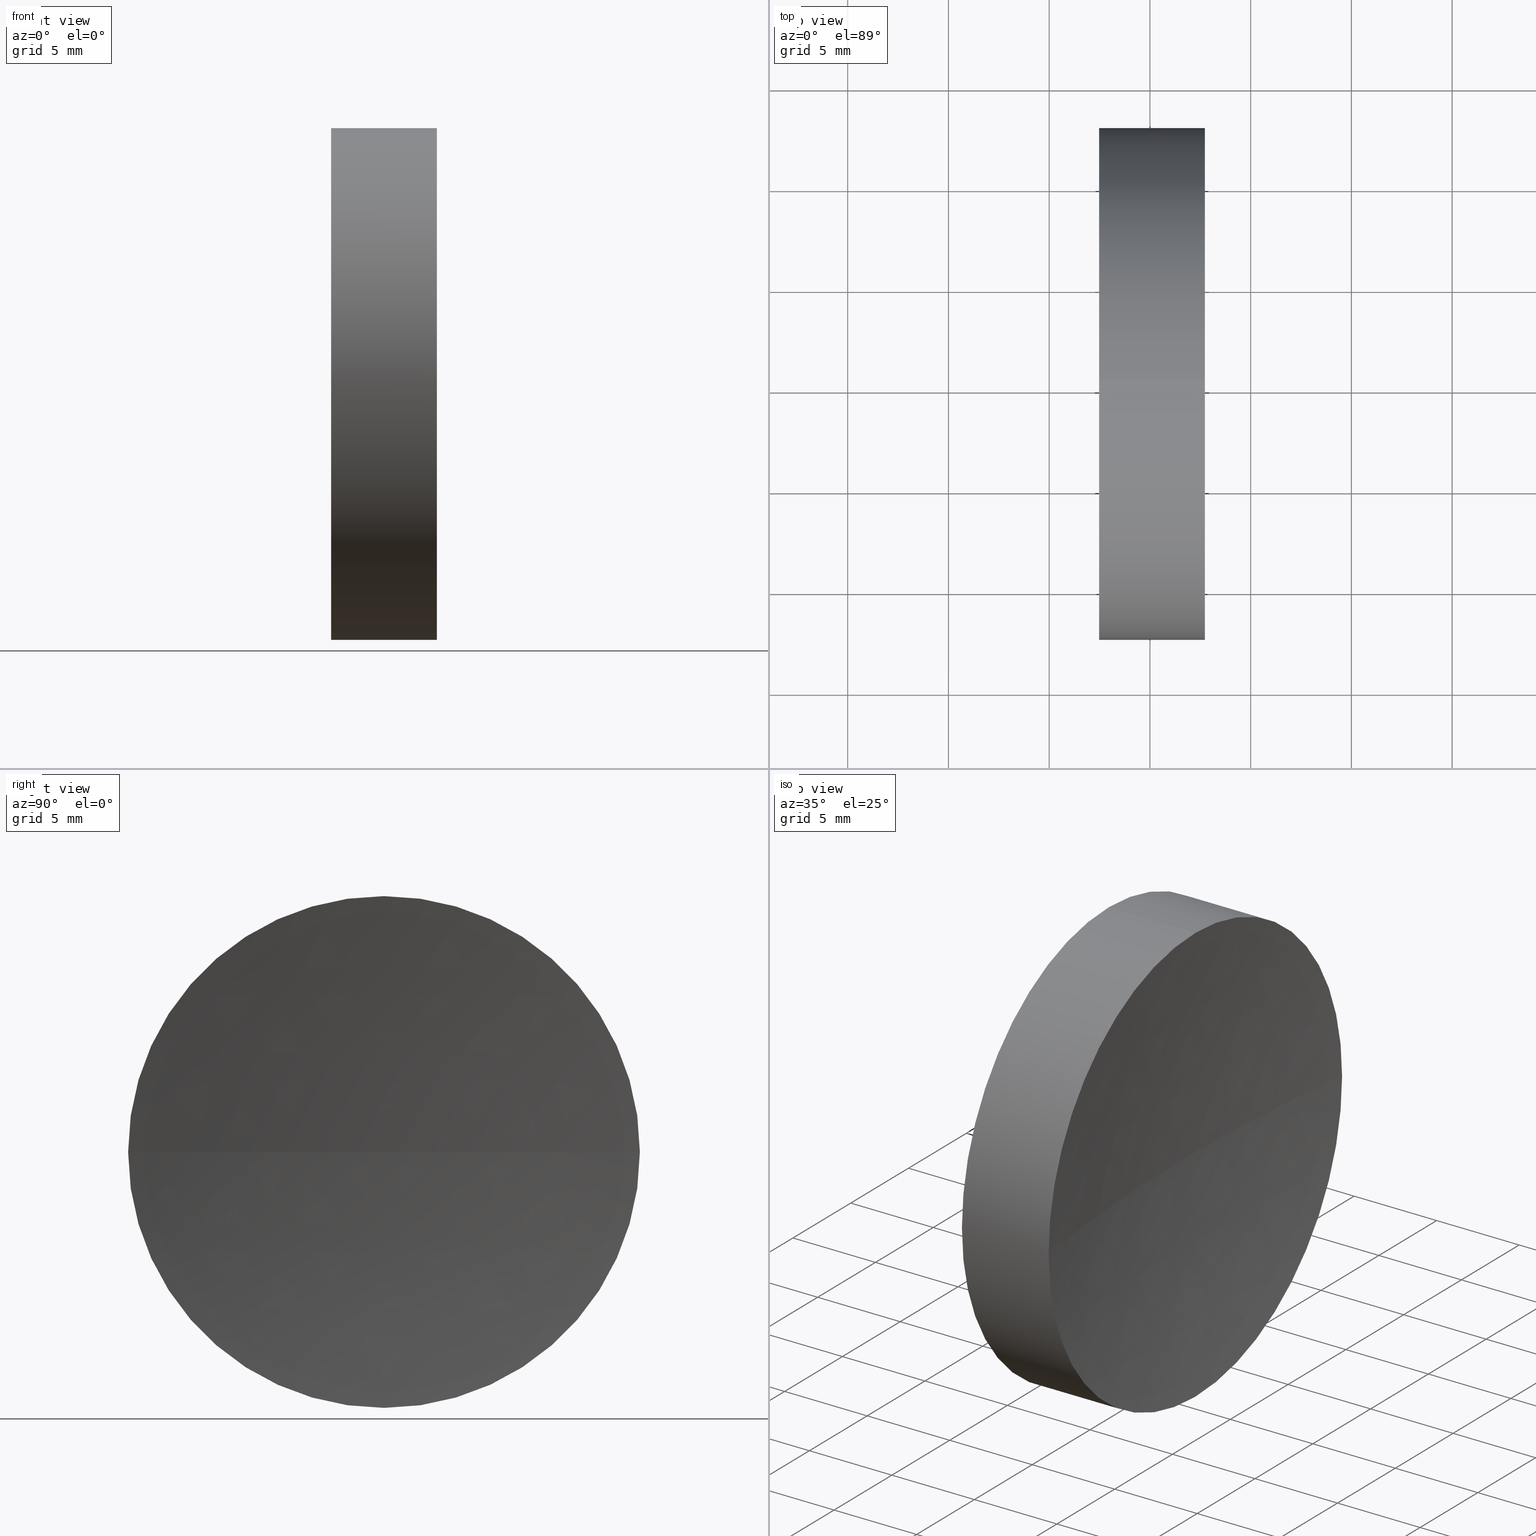
[diagram: canonical four-view strip — front | top / right | iso, engineering-drawing reading convention]
A machine part, canonical four-view strip (front | top / right | iso — engineering-drawing reading convention). The complete STEP part file that produces these views, byte-faithful:
ISO-10303-21;
HEADER;
FILE_DESCRIPTION (( 'STEP AP214' ),
    '1' );
FILE_NAME ('130060.STEP',
    '2019-07-02T06:16:13',
    ( '' ),
    ( '' ),
    'SwSTEP 2.0',
    'SolidWorks 2016',
    '' );
FILE_SCHEMA (( 'AUTOMOTIVE_DESIGN' ));
ENDSEC;

DATA;
#1 = ORIENTED_EDGE ( 'NONE', *, *, #63, .T. ) ;
#2 = PRODUCT_DEFINITION ( 'δ֪', '', #175, #84 ) ;
#3 = DIRECTION ( 'NONE',  ( 0.0000000000000000000, 0.0000000000000000000, -1.000000000000000000 ) ) ;
#4 = CARTESIAN_POINT ( 'NONE',  ( 117.4776727839183900, 77.92260287298734100, 0.0000000000000000000 ) ) ;
#5 = VECTOR ( 'NONE', #171, 1000.000000000000000 ) ;
#6 = DIRECTION ( 'NONE',  ( 0.0000000000000000000, 0.0000000000000000000, 1.000000000000000000 ) ) ;
#7 = ORIENTED_EDGE ( 'NONE', *, *, #120, .T. ) ;
#8 = CARTESIAN_POINT ( 'NONE',  ( 117.4776727839183900, 65.22260287298739500, -12.69999999999997400 ) ) ;
#9 = EDGE_CURVE ( 'NONE', #164, #29, #129, .T. ) ;
#10 = DIRECTION ( 'NONE',  ( 0.0000000000000000000, 1.000000000000000000, 1.224646799147353000E-016 ) ) ;
#11 = EDGE_LOOP ( 'NONE', ( #81, #210, #183, #21 ) ) ;
#12 =( LENGTH_UNIT ( ) NAMED_UNIT ( * ) SI_UNIT ( .MILLI., .METRE. ) );
#13 = SPHERICAL_SURFACE ( 'NONE', #94, 92.59999999999999400 ) ;
#14 = VERTEX_POINT ( 'NONE', #35 ) ;
#15 = AXIS2_PLACEMENT_3D ( 'NONE', #149, #56, #97 ) ;
#16 = FACE_OUTER_BOUND ( 'NONE', #72, .T. ) ;
#17 = EDGE_CURVE ( 'NONE', #141, #170, #18, .T. ) ;
#18 = CIRCLE ( 'NONE', #168, 92.59999999999999400 ) ;
#19 =( NAMED_UNIT ( * ) PLANE_ANGLE_UNIT ( ) SI_UNIT ( $, .RADIAN. ) );
#20 = DIRECTION ( 'NONE',  ( 0.0000000000000000000, 0.0000000000000000000, -1.000000000000000000 ) ) ;
#21 = ORIENTED_EDGE ( 'NONE', *, *, #181, .T. ) ;
#22 = CARTESIAN_POINT ( 'NONE',  ( 118.3527034462293300, 65.22260287298732400, 0.0000000000000000000 ) ) ;
#23 = SPHERICAL_SURFACE ( 'NONE', #28, 92.59999999999999400 ) ;
#24 = DIRECTION ( 'NONE',  ( -1.000000000000000000, -0.0000000000000000000, -0.0000000000000000000 ) ) ;
#25 = CARTESIAN_POINT ( 'NONE',  ( 122.7277341085402600, 77.92260287298734100, 0.0000000000000000000 ) ) ;
#26 = PRESENTATION_STYLE_ASSIGNMENT (( #188 ) ) ;
#27 =( NAMED_UNIT ( * ) SI_UNIT ( $, .STERADIAN. ) SOLID_ANGLE_UNIT ( ) );
#28 = AXIS2_PLACEMENT_3D ( 'NONE', #88, #20, #116 ) ;
#29 = VERTEX_POINT ( 'NONE', #132 ) ;
#30 = SPHERICAL_SURFACE ( 'NONE', #144, 92.59999999999999400 ) ;
#31 = UNCERTAINTY_MEASURE_WITH_UNIT (LENGTH_MEASURE( 1.000000000000000100E-005 ), #75, 'distance_accuracy_value', 'NONE');
#32 = ORIENTED_EDGE ( 'NONE', *, *, #185, .F. ) ;
#33 = ORIENTED_EDGE ( 'NONE', *, *, #130, .T. ) ;
#34 = DIRECTION ( 'NONE',  ( 0.0000000000000000000, 1.224646799147353200E-016, -1.000000000000000000 ) ) ;
#35 = CARTESIAN_POINT ( 'NONE',  ( 121.8527034462293400, 65.22260287298732400, 0.0000000000000000000 ) ) ;
#36 = EDGE_CURVE ( 'NONE', #87, #52, #221, .T. ) ;
#37 = AXIS2_PLACEMENT_3D ( 'NONE', #117, #114, #38 ) ;
#38 = DIRECTION ( 'NONE',  ( 0.0000000000000000000, 1.000000000000000000, 0.0000000000000000000 ) ) ;
#39 = CARTESIAN_POINT ( 'NONE',  ( 109.9369352260864600, 65.22260287298739500, 0.0000000000000000000 ) ) ;
#40 = EDGE_CURVE ( 'NONE', #141, #52, #180, .T. ) ;
#41 = CARTESIAN_POINT ( 'NONE',  ( 117.4776727839183900, 65.22260287298739500, 0.0000000000000000000 ) ) ;
#42 = APPLICATION_CONTEXT ( 'automotive_design' ) ;
#43 = CIRCLE ( 'NONE', #208, 12.69999999999997400 ) ;
#44 = AXIS2_PLACEMENT_3D ( 'NONE', #39, #61, #154 ) ;
#45 = ADVANCED_FACE ( 'NONE', ( #76 ), #30, .F. ) ;
#46 = ORIENTED_EDGE ( 'NONE', *, *, #64, .T. ) ;
#47 = LINE ( 'NONE', #202, #5 ) ;
#48 = CARTESIAN_POINT ( 'NONE',  ( 122.7277341085402600, 65.22260287298739500, 0.0000000000000000000 ) ) ;
#49 = ORIENTED_EDGE ( 'NONE', *, *, #181, .F. ) ;
#50 = FILL_AREA_STYLE_COLOUR ( '', #65 ) ;
#51 = DIRECTION ( 'NONE',  ( 0.0000000000000000000, 1.000000000000000000, 1.224646799147353000E-016 ) ) ;
#52 = VERTEX_POINT ( 'NONE', #203 ) ;
#53 = DIRECTION ( 'NONE',  ( -1.000000000000000000, -0.0000000000000000000, -0.0000000000000000000 ) ) ;
#54 = ADVANCED_BREP_SHAPE_REPRESENTATION ( '130060', ( #69, #163 ), #123 ) ;
#55 = CARTESIAN_POINT ( 'NONE',  ( 214.4527034462293200, 65.22260287298732400, 0.0000000000000000000 ) ) ;
#56 = DIRECTION ( 'NONE',  ( 0.0000000000000000000, 0.0000000000000000000, 1.000000000000000000 ) ) ;
#57 = FACE_OUTER_BOUND ( 'NONE', #191, .T. ) ;
#58 = DIRECTION ( 'NONE',  ( 0.0000000000000000000, 0.0000000000000000000, 1.000000000000000000 ) ) ;
#59 = STYLED_ITEM ( 'NONE', ( #146 ), #54 ) ;
#60 = CARTESIAN_POINT ( 'NONE',  ( 122.7277341085402600, 65.22260287298739500, 12.69999999999997400 ) ) ;
#61 = DIRECTION ( 'NONE',  ( -1.000000000000000000, -0.0000000000000000000, -0.0000000000000000000 ) ) ;
#62 = PRODUCT_RELATED_PRODUCT_CATEGORY ( 'part', '', ( #211 ) ) ;
#63 = EDGE_CURVE ( 'NONE', #230, #147, #68, .T. ) ;
#64 = EDGE_CURVE ( 'NONE', #147, #14, #166, .T. ) ;
#65 = COLOUR_RGB ( '',1.000000000000000000, 1.000000000000000000, 1.000000000000000000 ) ;
#66 = PRESENTATION_LAYER_ASSIGNMENT (  '', '', ( #59 ) ) ;
#67 = CARTESIAN_POINT ( 'NONE',  ( 25.75270344622933300, 65.22260287298732400, 0.0000000000000000000 ) ) ;
#68 = CIRCLE ( 'NONE', #150, 12.69999999999997400 ) ;
#69 = MANIFOLD_SOLID_BREP ( '��ת1', #177 ) ;
#70 = ORIENTED_EDGE ( 'NONE', *, *, #120, .F. ) ;
#71 = DIRECTION ( 'NONE',  ( 0.0000000000000000000, 0.0000000000000000000, 1.000000000000000000 ) ) ;
#72 = EDGE_LOOP ( 'NONE', ( #126, #7, #32, #49, #199, #182 ) ) ;
#73 = CARTESIAN_POINT ( 'NONE',  ( 122.7277341085402600, 65.22260287298739500, 0.0000000000000000000 ) ) ;
#74 = CIRCLE ( 'NONE', #128, 12.69999999999997400 ) ;
#75 =( LENGTH_UNIT ( ) NAMED_UNIT ( * ) SI_UNIT ( .MILLI., .METRE. ) );
#76 = FACE_OUTER_BOUND ( 'NONE', #178, .T. ) ;
#77 = DIRECTION ( 'NONE',  ( -1.000000000000000000, -0.0000000000000000000, -0.0000000000000000000 ) ) ;
#78 =( NAMED_UNIT ( * ) PLANE_ANGLE_UNIT ( ) SI_UNIT ( $, .RADIAN. ) );
#79 = ORIENTED_EDGE ( 'NONE', *, *, #9, .T. ) ;
#80 = UNCERTAINTY_MEASURE_WITH_UNIT (LENGTH_MEASURE( 1.000000000000000100E-005 ), #98, 'distance_accuracy_value', 'NONE');
#81 = ORIENTED_EDGE ( 'NONE', *, *, #17, .F. ) ;
#82 = FILL_AREA_STYLE_COLOUR ( '', #195 ) ;
#83 = ADVANCED_FACE ( 'NONE', ( #90 ), #23, .F. ) ;
#84 = PRODUCT_DEFINITION_CONTEXT ( 'detailed design', #42, 'design' ) ;
#85 = DIRECTION ( 'NONE',  ( 0.0000000000000000000, 0.0000000000000000000, 1.000000000000000000 ) ) ;
#86 = EDGE_CURVE ( 'NONE', #153, #14, #232, .T. ) ;
#87 = VERTEX_POINT ( 'NONE', #8 ) ;
#88 = CARTESIAN_POINT ( 'NONE',  ( 25.75270344622933300, 65.22260287298732400, 0.0000000000000000000 ) ) ;
#89 = AXIS2_PLACEMENT_3D ( 'NONE', #223, #53, #167 ) ;
#90 = FACE_OUTER_BOUND ( 'NONE', #11, .T. ) ;
#91 =( NAMED_UNIT ( * ) SI_UNIT ( $, .STERADIAN. ) SOLID_ANGLE_UNIT ( ) );
#92 = CARTESIAN_POINT ( 'NONE',  ( 122.7277341085402600, 52.52260287298737800, -1.555301434917131700E-015 ) ) ;
#93 = FACE_OUTER_BOUND ( 'NONE', #131, .T. ) ;
#94 = AXIS2_PLACEMENT_3D ( 'NONE', #55, #136, #173 ) ;
#95 = CARTESIAN_POINT ( 'NONE',  ( 109.9369352260864600, 65.22260287298739500, 0.0000000000000000000 ) ) ;
#96 = EDGE_LOOP ( 'NONE', ( #206, #46, #133, #219 ) ) ;
#97 = DIRECTION ( 'NONE',  ( 1.000000000000000000, 0.0000000000000000000, 0.0000000000000000000 ) ) ;
#98 =( LENGTH_UNIT ( ) NAMED_UNIT ( * ) SI_UNIT ( .MILLI., .METRE. ) );
#99 = DIRECTION ( 'NONE',  ( 0.0000000000000000000, 0.0000000000000000000, 1.000000000000000000 ) ) ;
#100 = AXIS2_PLACEMENT_3D ( 'NONE', #204, #34, #51 ) ;
#101 = SURFACE_STYLE_USAGE ( .BOTH. , #137 ) ;
#102 = CIRCLE ( 'NONE', #198, 12.69999999999997400 ) ;
#103 = ORIENTED_EDGE ( 'NONE', *, *, #63, .F. ) ;
#104 = EDGE_CURVE ( 'NONE', #164, #153, #74, .T. ) ;
#105 = ADVANCED_FACE ( 'NONE', ( #143 ), #151, .F. ) ;
#106 = AXIS2_PLACEMENT_3D ( 'NONE', #95, #152, #6 ) ;
#107 = UNCERTAINTY_MEASURE_WITH_UNIT (LENGTH_MEASURE( 1.000000000000000100E-005 ), #12, 'distance_accuracy_value', 'NONE');
#108 = CYLINDRICAL_SURFACE ( 'NONE', #106, 12.69999999999998200 ) ;
#109 = ORIENTED_EDGE ( 'NONE', *, *, #197, .F. ) ;
#110 = CARTESIAN_POINT ( 'NONE',  ( 214.4527034462293200, 65.22260287298732400, 0.0000000000000000000 ) ) ;
#111 = ORIENTED_EDGE ( 'NONE', *, *, #86, .T. ) ;
#112 = DIRECTION ( 'NONE',  ( 1.000000000000000000, 0.0000000000000000000, 0.0000000000000000000 ) ) ;
#113 = PRODUCT_DEFINITION_SHAPE ( 'NONE', 'NONE',  #2 ) ;
#114 = DIRECTION ( 'NONE',  ( 0.0000000000000000000, 0.0000000000000000000, -1.000000000000000000 ) ) ;
#115 = AXIS2_PLACEMENT_3D ( 'NONE', #226, #24, #135 ) ;
#116 = DIRECTION ( 'NONE',  ( 0.0000000000000000000, 1.000000000000000000, 0.0000000000000000000 ) ) ;
#117 = CARTESIAN_POINT ( 'NONE',  ( 214.4527034462293200, 65.22260287298732400, 0.0000000000000000000 ) ) ;
#118 = CYLINDRICAL_SURFACE ( 'NONE', #44, 12.69999999999998200 ) ;
#119 = CARTESIAN_POINT ( 'NONE',  ( 117.4776727839183900, 65.22260287298739500, 0.0000000000000000000 ) ) ;
#120 = EDGE_CURVE ( 'NONE', #230, #87, #47, .T. ) ;
#121 = AXIS2_PLACEMENT_3D ( 'NONE', #73, #172, #58 ) ;
#122 = ORIENTED_EDGE ( 'NONE', *, *, #185, .T. ) ;
#123 =( GEOMETRIC_REPRESENTATION_CONTEXT ( 3 ) GLOBAL_UNCERTAINTY_ASSIGNED_CONTEXT ( ( #107 ) ) GLOBAL_UNIT_ASSIGNED_CONTEXT ( ( #12, #78, #215 ) ) REPRESENTATION_CONTEXT ( 'NONE', 'WORKASPACE' ) );
#124 = ADVANCED_FACE ( 'NONE', ( #16 ), #108, .T. ) ;
#125 = VECTOR ( 'NONE', #165, 1000.000000000000000 ) ;
#126 = ORIENTED_EDGE ( 'NONE', *, *, #142, .T. ) ;
#127 = ORIENTED_EDGE ( 'NONE', *, *, #17, .T. ) ;
#128 = AXIS2_PLACEMENT_3D ( 'NONE', #228, #225, #71 ) ;
#129 = LINE ( 'NONE', #169, #125 ) ;
#130 = EDGE_CURVE ( 'NONE', #147, #164, #194, .T. ) ;
#131 = EDGE_LOOP ( 'NONE', ( #70, #1, #33, #79, #109, #160 ) ) ;
#132 = CARTESIAN_POINT ( 'NONE',  ( 117.4776727839183900, 65.22260287298739500, 12.69999999999997400 ) ) ;
#133 = ORIENTED_EDGE ( 'NONE', *, *, #86, .F. ) ;
#134 = SURFACE_SIDE_STYLE ('',( #162 ) ) ;
#135 = DIRECTION ( 'NONE',  ( 0.0000000000000000000, 0.0000000000000000000, 1.000000000000000000 ) ) ;
#136 = DIRECTION ( 'NONE',  ( 0.0000000000000000000, 0.0000000000000000000, -1.000000000000000000 ) ) ;
#137 = SURFACE_SIDE_STYLE ('',( #216 ) ) ;
#138 = APPLICATION_PROTOCOL_DEFINITION ( 'draft international standard', 'automotive_design', 1998, #229 ) ;
#139 = DIRECTION ( 'NONE',  ( 0.0000000000000000000, 0.0000000000000000000, 1.000000000000000000 ) ) ;
#140 = CARTESIAN_POINT ( 'NONE',  ( 122.7277341085402600, 65.22260287298739500, -12.69999999999997400 ) ) ;
#141 = VERTEX_POINT ( 'NONE', #22 ) ;
#142 = EDGE_CURVE ( 'NONE', #153, #230, #145, .T. ) ;
#143 = FACE_OUTER_BOUND ( 'NONE', #96, .T. ) ;
#144 = AXIS2_PLACEMENT_3D ( 'NONE', #67, #3, #186 ) ;
#145 = CIRCLE ( 'NONE', #121, 12.69999999999997400 ) ;
#146 = PRESENTATION_STYLE_ASSIGNMENT (( #101 ) ) ;
#147 = VERTEX_POINT ( 'NONE', #92 ) ;
#148 = CARTESIAN_POINT ( 'NONE',  ( 25.75270344622933300, 65.22260287298732400, 0.0000000000000000000 ) ) ;
#149 = CARTESIAN_POINT ( 'NONE',  ( 214.4527034462293200, 65.22260287298732400, 0.0000000000000000000 ) ) ;
#150 = AXIS2_PLACEMENT_3D ( 'NONE', #48, #184, #220 ) ;
#151 = SPHERICAL_SURFACE ( 'NONE', #37, 92.59999999999999400 ) ;
#152 = DIRECTION ( 'NONE',  ( -1.000000000000000000, -0.0000000000000000000, -0.0000000000000000000 ) ) ;
#153 = VERTEX_POINT ( 'NONE', #25 ) ;
#154 = DIRECTION ( 'NONE',  ( 0.0000000000000000000, 0.0000000000000000000, 1.000000000000000000 ) ) ;
#155 = MECHANICAL_DESIGN_GEOMETRIC_PRESENTATION_REPRESENTATION (  '', ( #189 ), #218 ) ;
#156 = DIRECTION ( 'NONE',  ( 1.000000000000000000, 0.0000000000000000000, 0.0000000000000000000 ) ) ;
#157 = DIRECTION ( 'NONE',  ( -1.000000000000000000, -0.0000000000000000000, -0.0000000000000000000 ) ) ;
#158 = ORIENTED_EDGE ( 'NONE', *, *, #40, .F. ) ;
#159 = MECHANICAL_DESIGN_GEOMETRIC_PRESENTATION_REPRESENTATION (  '', ( #59 ), #200 ) ;
#160 = ORIENTED_EDGE ( 'NONE', *, *, #36, .F. ) ;
#161 = ADVANCED_FACE ( 'NONE', ( #57 ), #13, .F. ) ;
#162 = SURFACE_STYLE_FILL_AREA ( #207 ) ;
#163 = AXIS2_PLACEMENT_3D ( 'NONE', #176, #99, #156 ) ;
#164 = VERTEX_POINT ( 'NONE', #60 ) ;
#165 = DIRECTION ( 'NONE',  ( -1.000000000000000000, -0.0000000000000000000, -0.0000000000000000000 ) ) ;
#166 = CIRCLE ( 'NONE', #193, 92.60000000000000900 ) ;
#167 = DIRECTION ( 'NONE',  ( 0.0000000000000000000, 0.0000000000000000000, 1.000000000000000000 ) ) ;
#168 = AXIS2_PLACEMENT_3D ( 'NONE', #148, #85, #112 ) ;
#169 = CARTESIAN_POINT ( 'NONE',  ( 109.9369352260864600, 65.22260287298739500, 12.69999999999998200 ) ) ;
#170 = VERTEX_POINT ( 'NONE', #4 ) ;
#171 = DIRECTION ( 'NONE',  ( -1.000000000000000000, -0.0000000000000000000, -0.0000000000000000000 ) ) ;
#172 = DIRECTION ( 'NONE',  ( -1.000000000000000000, -0.0000000000000000000, -0.0000000000000000000 ) ) ;
#173 = DIRECTION ( 'NONE',  ( 0.0000000000000000000, 1.000000000000000000, 0.0000000000000000000 ) ) ;
#174 =( NAMED_UNIT ( * ) PLANE_ANGLE_UNIT ( ) SI_UNIT ( $, .RADIAN. ) );
#175 = PRODUCT_DEFINITION_FORMATION_WITH_SPECIFIED_SOURCE ( '�κ�', '', #211, .NOT_KNOWN. ) ;
#176 = CARTESIAN_POINT ( 'NONE',  ( 0.0000000000000000000, 0.0000000000000000000, 0.0000000000000000000 ) ) ;
#177 = CLOSED_SHELL ( 'NONE', ( #83, #124, #105, #161, #217, #45 ) ) ;
#178 = EDGE_LOOP ( 'NONE', ( #158, #127, #122, #196 ) ) ;
#179 = FILL_AREA_STYLE ('',( #82 ) ) ;
#180 = CIRCLE ( 'NONE', #100, 92.60000000000000900 ) ;
#181 = EDGE_CURVE ( 'NONE', #29, #170, #102, .T. ) ;
#182 = ORIENTED_EDGE ( 'NONE', *, *, #104, .T. ) ;
#183 = ORIENTED_EDGE ( 'NONE', *, *, #197, .T. ) ;
#184 = DIRECTION ( 'NONE',  ( -1.000000000000000000, -0.0000000000000000000, -0.0000000000000000000 ) ) ;
#185 = EDGE_CURVE ( 'NONE', #170, #87, #43, .T. ) ;
#186 = DIRECTION ( 'NONE',  ( 0.0000000000000000000, 1.000000000000000000, 0.0000000000000000000 ) ) ;
#187 = DIRECTION ( 'NONE',  ( -1.000000000000000000, -0.0000000000000000000, -0.0000000000000000000 ) ) ;
#188 = SURFACE_STYLE_USAGE ( .BOTH. , #134 ) ;
#189 = STYLED_ITEM ( 'NONE', ( #26 ), #69 ) ;
#190 = DIRECTION ( 'NONE',  ( 0.0000000000000000000, 1.224646799147353200E-016, -1.000000000000000000 ) ) ;
#191 = EDGE_LOOP ( 'NONE', ( #201, #103, #224, #111 ) ) ;
#192 = CARTESIAN_POINT ( 'NONE',  ( 117.4776727839183900, 65.22260287298739500, 0.0000000000000000000 ) ) ;
#193 = AXIS2_PLACEMENT_3D ( 'NONE', #110, #190, #10 ) ;
#194 = CIRCLE ( 'NONE', #115, 12.69999999999997400 ) ;
#195 = COLOUR_RGB ( '',1.000000000000000000, 1.000000000000000000, 1.000000000000000000 ) ;
#196 = ORIENTED_EDGE ( 'NONE', *, *, #36, .T. ) ;
#197 = EDGE_CURVE ( 'NONE', #52, #29, #205, .T. ) ;
#198 = AXIS2_PLACEMENT_3D ( 'NONE', #192, #77, #209 ) ;
#199 = ORIENTED_EDGE ( 'NONE', *, *, #9, .F. ) ;
#200 =( GEOMETRIC_REPRESENTATION_CONTEXT ( 3 ) GLOBAL_UNCERTAINTY_ASSIGNED_CONTEXT ( ( #80 ) ) GLOBAL_UNIT_ASSIGNED_CONTEXT ( ( #98, #174, #27 ) ) REPRESENTATION_CONTEXT ( 'NONE', 'WORKASPACE' ) );
#201 = ORIENTED_EDGE ( 'NONE', *, *, #64, .F. ) ;
#202 = CARTESIAN_POINT ( 'NONE',  ( 109.9369352260864600, 65.22260287298739500, -12.69999999999998200 ) ) ;
#203 = CARTESIAN_POINT ( 'NONE',  ( 117.4776727839183900, 52.52260287298737800, -1.555301434917131700E-015 ) ) ;
#204 = CARTESIAN_POINT ( 'NONE',  ( 25.75270344622933300, 65.22260287298732400, 0.0000000000000000000 ) ) ;
#205 = CIRCLE ( 'NONE', #222, 12.69999999999997400 ) ;
#206 = ORIENTED_EDGE ( 'NONE', *, *, #130, .F. ) ;
#207 = FILL_AREA_STYLE ('',( #50 ) ) ;
#208 = AXIS2_PLACEMENT_3D ( 'NONE', #119, #187, #213 ) ;
#209 = DIRECTION ( 'NONE',  ( 0.0000000000000000000, 0.0000000000000000000, 1.000000000000000000 ) ) ;
#210 = ORIENTED_EDGE ( 'NONE', *, *, #40, .T. ) ;
#211 = PRODUCT ( '130060', '130060', '', ( #212 ) ) ;
#212 = PRODUCT_CONTEXT ( 'NONE', #229, 'mechanical' ) ;
#213 = DIRECTION ( 'NONE',  ( 0.0000000000000000000, 0.0000000000000000000, 1.000000000000000000 ) ) ;
#214 = APPLICATION_PROTOCOL_DEFINITION ( 'draft international standard', 'automotive_design', 1998, #42 ) ;
#215 =( NAMED_UNIT ( * ) SI_UNIT ( $, .STERADIAN. ) SOLID_ANGLE_UNIT ( ) );
#216 = SURFACE_STYLE_FILL_AREA ( #179 ) ;
#217 = ADVANCED_FACE ( 'NONE', ( #93 ), #118, .T. ) ;
#218 =( GEOMETRIC_REPRESENTATION_CONTEXT ( 3 ) GLOBAL_UNCERTAINTY_ASSIGNED_CONTEXT ( ( #31 ) ) GLOBAL_UNIT_ASSIGNED_CONTEXT ( ( #75, #19, #91 ) ) REPRESENTATION_CONTEXT ( 'NONE', 'WORKASPACE' ) );
#219 = ORIENTED_EDGE ( 'NONE', *, *, #104, .F. ) ;
#220 = DIRECTION ( 'NONE',  ( 0.0000000000000000000, 0.0000000000000000000, 1.000000000000000000 ) ) ;
#221 = CIRCLE ( 'NONE', #89, 12.69999999999997400 ) ;
#222 = AXIS2_PLACEMENT_3D ( 'NONE', #41, #157, #139 ) ;
#223 = CARTESIAN_POINT ( 'NONE',  ( 117.4776727839183900, 65.22260287298739500, 0.0000000000000000000 ) ) ;
#224 = ORIENTED_EDGE ( 'NONE', *, *, #142, .F. ) ;
#225 = DIRECTION ( 'NONE',  ( -1.000000000000000000, -0.0000000000000000000, -0.0000000000000000000 ) ) ;
#226 = CARTESIAN_POINT ( 'NONE',  ( 122.7277341085402600, 65.22260287298739500, 0.0000000000000000000 ) ) ;
#227 = PRESENTATION_LAYER_ASSIGNMENT (  '', '', ( #189 ) ) ;
#228 = CARTESIAN_POINT ( 'NONE',  ( 122.7277341085402600, 65.22260287298739500, 0.0000000000000000000 ) ) ;
#229 = APPLICATION_CONTEXT ( 'automotive_design' ) ;
#230 = VERTEX_POINT ( 'NONE', #140 ) ;
#231 = SHAPE_DEFINITION_REPRESENTATION ( #113, #54 ) ;
#232 = CIRCLE ( 'NONE', #15, 92.59999999999999400 ) ;
ENDSEC;
END-ISO-10303-21;
